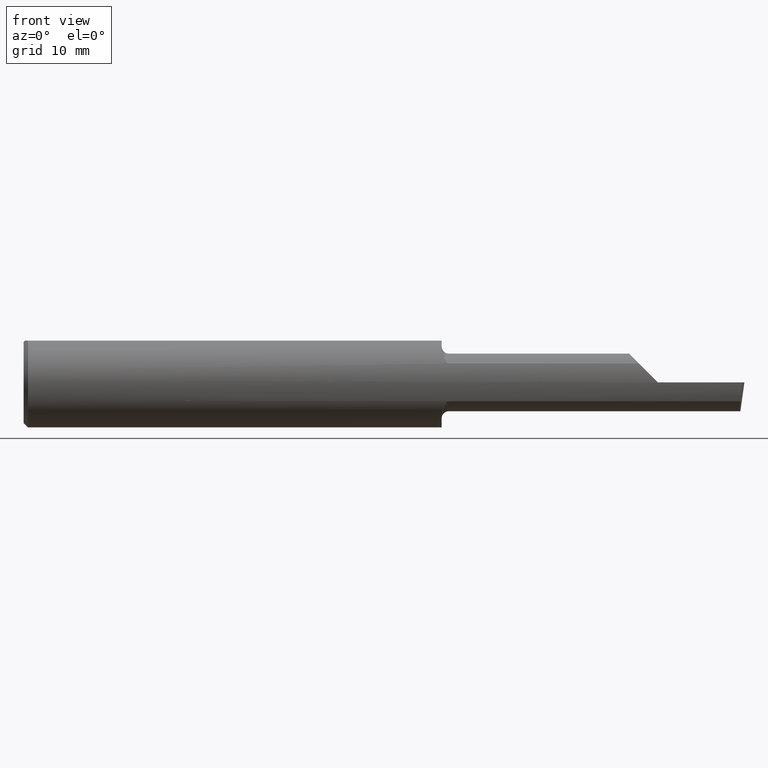
[diagram: clean part render]
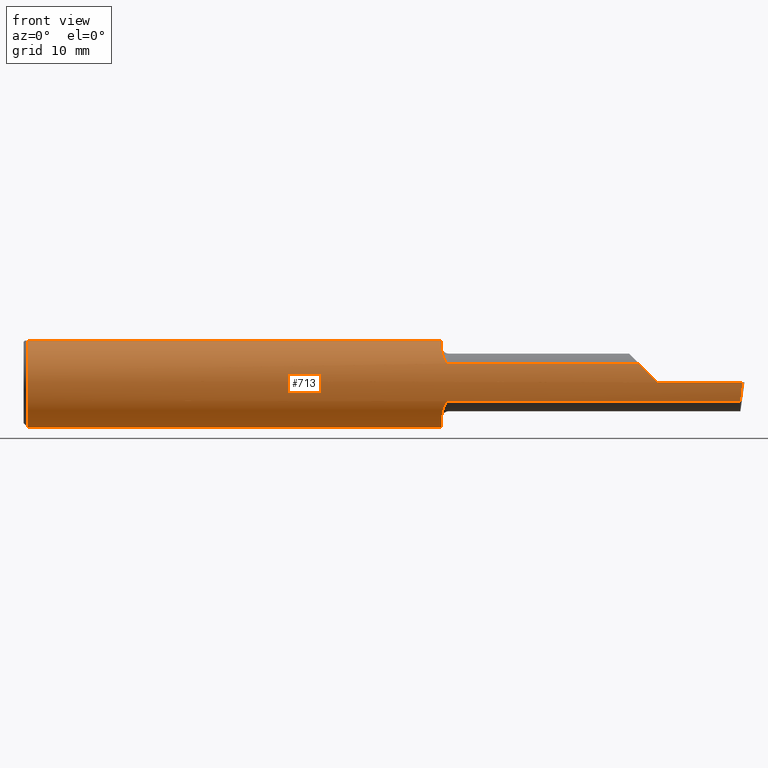
[diagram: same view with one face highlighted and labeled with its STEP entity id]
A machine part, front view. The second image highlights one B-rep face of the part: STEP entity #713.
In plain terms, the highlighted cylindrical surface (partial cylindrical patch) has radius 3.9649 mm, axis along (-1, -0, -0).
Its self-contained STEP definition (entity closure, byte-faithful):
#2 = CARTESIAN_POINT ( 'NONE',  ( 46.73599999999999710, -3.599887049924355154, -1.661794942640913098 ) ) ;
#4 = CARTESIAN_POINT ( 'NONE',  ( 37.46499999999999631, -3.599887049924355154, -1.661794942640913098 ) ) ;
#22 = ORIENTED_EDGE ( 'NONE', *, *, #257, .T. ) ;
#26 = CARTESIAN_POINT ( 'NONE',  ( 36.82999999999999829, -2.519138184568832983, -3.061811883615197072 ) ) ;
#31 =( BOUNDED_CURVE ( )  B_SPLINE_CURVE ( 3, ( #85, #451, #1150, #1238 ),
 .UNSPECIFIED., .F., .T. ) 
 B_SPLINE_CURVE_WITH_KNOTS ( ( 4, 4 ),
 ( 4.713029595418891660, 5.144867427157565842 ),
 .UNSPECIFIED. ) 
 CURVE ( )  GEOMETRIC_REPRESENTATION_ITEM ( )  RATIONAL_B_SPLINE_CURVE ( ( 1.000000000000000000, 0.9845199556095911575, 0.9845199556095911575, 1.000000000000000000 ) ) 
 REPRESENTATION_ITEM ( '' )  );
#36 = LINE ( 'NONE', #219, #791 ) ;
#40 = CARTESIAN_POINT ( 'NONE',  ( 36.82999999999999829, -2.519138184568832983, 3.061811883615197072 ) ) ;
#43 = VECTOR ( 'NONE', #915, 1000.000000000000000 ) ;
#50 = DIRECTION ( 'NONE',  ( 0.000000000000000000, 0.000000000000000000, -1.000000000000000000 ) ) ;
#56 = VERTEX_POINT ( 'NONE', #761 ) ;
#61 = EDGE_CURVE ( 'NONE', #269, #368, #850, .T. ) ;
#74 = ORIENTED_EDGE ( 'NONE', *, *, #223, .T. ) ;
#85 = CARTESIAN_POINT ( 'NONE',  ( 55.88000000000000256, -3.964939186418879213, 0.002539999999978843903 ) ) ;
#89 = CARTESIAN_POINT ( 'NONE',  ( 36.99726499476740571, -3.286836667701075854, 2.223289014318798440 ) ) ;
#98 = VECTOR ( 'NONE', #975, 1000.000000000000000 ) ;
#110 = CARTESIAN_POINT ( 'NONE',  ( 37.46499999999999631, -3.599887049924355154, -1.661794942640913098 ) ) ;
#115 = CARTESIAN_POINT ( 'NONE',  ( 55.88000000000000256, 0.000000000000000000, 0.000000000000000000 ) ) ;
#129 = CARTESIAN_POINT ( 'NONE',  ( 37.31266131581566725, -3.573289969088939255, -1.718397189166197547 ) ) ;
#131 = DIRECTION ( 'NONE',  ( 0.000000000000000000, 0.000000000000000000, 1.000000000000000000 ) ) ;
#134 = CARTESIAN_POINT ( 'NONE',  ( 63.50000000000000000, -1.462034237629201039, 3.685539999999999150 ) ) ;
#135 = AXIS2_PLACEMENT_3D ( 'NONE', #115, #616, #794 ) ;
#141 = EDGE_CURVE ( 'NONE', #56, #551, #529, .T. ) ;
#148 = EDGE_CURVE ( 'NONE', #255, #1234, #412, .T. ) ;
#151 = DIRECTION ( 'NONE',  ( 0.000000000000000000, 0.000000000000000000, -1.000000000000000000 ) ) ;
#160 = CARTESIAN_POINT ( 'NONE',  ( 37.16013817098802008, -3.482913605042309069, 1.896197172601131964 ) ) ;
#172 = CARTESIAN_POINT ( 'NONE',  ( 36.84086488926296710, -2.769437744535204970, 2.842117441750147577 ) ) ;
#174 = VERTEX_POINT ( 'NONE', #40 ) ;
#175 = AXIS2_PLACEMENT_3D ( 'NONE', #1119, #642, #151 ) ;
#193 = CARTESIAN_POINT ( 'NONE',  ( 46.73599999999999710, -3.599887049924355154, 1.661794942640912653 ) ) ;
#202 = LINE ( 'NONE', #134, #43 ) ;
#208 = DIRECTION ( 'NONE',  ( 1.000000000000000000, -0.000000000000000000, -0.000000000000000000 ) ) ;
#219 = CARTESIAN_POINT ( 'NONE',  ( 63.50000000000000000, 1.462034237629201039, 3.685539999999999150 ) ) ;
#223 = EDGE_CURVE ( 'NONE', #368, #56, #1198, .T. ) ;
#226 = CARTESIAN_POINT ( 'NONE',  ( 36.83000000000000540, -2.776463605467542450, -2.850094665743279077 ) ) ;
#242 = CARTESIAN_POINT ( 'NONE',  ( 0.3809999999999924558, 0.000000000000000000, 0.000000000000000000 ) ) ;
#244 = ORIENTED_EDGE ( 'NONE', *, *, #371, .F. ) ;
#252 = DIRECTION ( 'NONE',  ( 0.000000000000000000, 0.000000000000000000, -1.000000000000000000 ) ) ;
#255 = VERTEX_POINT ( 'NONE', #1008 ) ;
#257 = EDGE_CURVE ( 'NONE', #888, #1186, #589, .T. ) ;
#265 = EDGE_CURVE ( 'NONE', #613, #1083, #202, .T. ) ;
#269 = VERTEX_POINT ( 'NONE', #403 ) ;
#293 = AXIS2_PLACEMENT_3D ( 'NONE', #1178, #208, #799 ) ;
#307 = DIRECTION ( 'NONE',  ( -1.000000000000000000, -0.000000000000000000, -0.000000000000000000 ) ) ;
#314 = CARTESIAN_POINT ( 'NONE',  ( 37.05048060739425608, -3.373116484278351646, -2.089258773282957726 ) ) ;
#315 = AXIS2_PLACEMENT_3D ( 'NONE', #721, #896, #131 ) ;
#322 = CARTESIAN_POINT ( 'NONE',  ( 63.50000000000000000, -3.964939999999998577, -8.673617379884035472E-16 ) ) ;
#326 = FACE_OUTER_BOUND ( 'NONE', #818, .T. ) ;
#332 = EDGE_CURVE ( 'NONE', #255, #861, #830, .T. ) ;
#368 = VERTEX_POINT ( 'NONE', #844 ) ;
#371 = EDGE_CURVE ( 'NONE', #613, #174, #1213, .T. ) ;
#398 = CARTESIAN_POINT ( 'NONE',  ( 55.88000000000000256, -3.964939186418879213, 0.002539999999978843903 ) ) ;
#403 = CARTESIAN_POINT ( 'NONE',  ( 63.16765444560877540, -3.599887049924355598, -1.661794942640913542 ) ) ;
#412 = B_SPLINE_CURVE_WITH_KNOTS ( 'NONE', 3,
 ( #26, #226, #1002, #807, #314, #1204, #907, #996, #129, #981, #525, #110 ),
 .UNSPECIFIED., .F., .F.,
 ( 4, 2, 2, 2, 2, 4 ),
 ( 0.000000000000000000, 0.0009854161110805809577, 0.001478124166620873496, 0.001724478194391019766, 0.001847655208276093117, 0.001970832222161166252 ),
 .UNSPECIFIED. ) ;
#419 = DIRECTION ( 'NONE',  ( 1.000000000000000000, 0.000000000000000000, 0.000000000000000000 ) ) ;
#451 = CARTESIAN_POINT ( 'NONE',  ( 55.30478309583587304, -3.964570693771735765, 0.5777569041641154035 ) ) ;
#462 = CARTESIAN_POINT ( 'NONE',  ( 36.91278457167212679, -3.097160976341655214, 2.480706191382078263 ) ) ;
#467 = CIRCLE ( 'NONE', #552, 3.964939999999999465 ) ;
#476 = VERTEX_POINT ( 'NONE', #539 ) ;
#485 = AXIS2_PLACEMENT_3D ( 'NONE', #839, #637, #252 ) ;
#494 = CARTESIAN_POINT ( 'NONE',  ( 63.34737096957299229, -3.964939999999998577, -1.734723475976807094E-15 ) ) ;
#515 = EDGE_CURVE ( 'NONE', #476, #1196, #797, .T. ) ;
#525 = CARTESIAN_POINT ( 'NONE',  ( 37.42273214518530722, -3.599887049924846316, -1.661794942640280492 ) ) ;
#529 = CIRCLE ( 'NONE', #135, 3.964939999999999465 ) ;
#539 = CARTESIAN_POINT ( 'NONE',  ( 37.46499999999999631, -3.599887049924355154, 1.661794942640912653 ) ) ;
#551 = VERTEX_POINT ( 'NONE', #398 ) ;
#552 = AXIS2_PLACEMENT_3D ( 'NONE', #242, #1121, #50 ) ;
#559 = CARTESIAN_POINT ( 'NONE',  ( 36.88234523350259764, -2.993776095290413330, 2.604749827684865071 ) ) ;
#564 = ORIENTED_EDGE ( 'NONE', *, *, #265, .T. ) ;
#567 = CARTESIAN_POINT ( 'NONE',  ( 37.42244100483410563, -3.599887049924355598, 1.661794942640912875 ) ) ;
#575 = CARTESIAN_POINT ( 'NONE',  ( 37.05039366075621388, -3.372877125526301256, 2.089606631779968193 ) ) ;
#580 = ORIENTED_EDGE ( 'NONE', *, *, #957, .T. ) ;
#589 = CIRCLE ( 'NONE', #293, 3.964939999999999465 ) ;
#608 = VECTOR ( 'NONE', #701, 1000.000000000000000 ) ;
#613 = VERTEX_POINT ( 'NONE', #878 ) ;
#616 = DIRECTION ( 'NONE',  ( -1.000000000000000000, -0.000000000000000000, -0.000000000000000000 ) ) ;
#629 = ORIENTED_EDGE ( 'NONE', *, *, #332, .F. ) ;
#630 = EDGE_CURVE ( 'NONE', #269, #1234, #1072, .T. ) ;
#637 = DIRECTION ( 'NONE',  ( 1.000000000000000000, 0.000000000000000000, 0.000000000000000000 ) ) ;
#642 = DIRECTION ( 'NONE',  ( 1.000000000000000000, 0.000000000000000000, 0.000000000000000000 ) ) ;
#669 = CARTESIAN_POINT ( 'NONE',  ( 63.22088425362750996, -3.841336638864744746, -1.138751319066783063 ) ) ;
#686 = CARTESIAN_POINT ( 'NONE',  ( 63.28173451222403401, -3.964939999999998577, -0.5760837926561074296 ) ) ;
#701 = DIRECTION ( 'NONE',  ( -1.000000000000000000, -0.000000000000000000, -0.000000000000000000 ) ) ;
#704 = CARTESIAN_POINT ( 'NONE',  ( 0.3809999999999924558, 0.000000000000000000, -3.964939999999999465 ) ) ;
#707 = VECTOR ( 'NONE', #307, 1000.000000000000000 ) ;
#713 = ADVANCED_FACE ( 'NONE', ( #326 ), #1089, .T. ) ;
#721 = CARTESIAN_POINT ( 'NONE',  ( 63.50000000000000000, 0.000000000000000000, 0.000000000000000000 ) ) ;
#725 = EDGE_CURVE ( 'NONE', #1186, #861, #36, .T. ) ;
#741 = CARTESIAN_POINT ( 'NONE',  ( 37.31257322604091087, -3.573254725572614809, 1.718470549442532302 ) ) ;
#755 = CARTESIAN_POINT ( 'NONE',  ( 54.22074505735906769, -3.599887049924353821, 1.661794942640917094 ) ) ;
#756 = ORIENTED_EDGE ( 'NONE', *, *, #1223, .T. ) ;
#761 = CARTESIAN_POINT ( 'NONE',  ( 55.88000000000000256, -3.964939999999999465, -8.673617379884035472E-16 ) ) ;
#787 = CARTESIAN_POINT ( 'NONE',  ( 36.82999999999999829, 1.462034237629201039, 3.685539999999999150 ) ) ;
#791 = VECTOR ( 'NONE', #419, 1000.000000000000000 ) ;
#794 = DIRECTION ( 'NONE',  ( 0.000000000000000000, 0.000000000000000000, 1.000000000000000000 ) ) ;
#797 = LINE ( 'NONE', #193, #98 ) ;
#799 = DIRECTION ( 'NONE',  ( 0.000000000000000000, 0.000000000000000000, -1.000000000000000000 ) ) ;
#807 = CARTESIAN_POINT ( 'NONE',  ( 36.99735470549299521, -3.287133544512903516, -2.222929241776083753 ) ) ;
#818 = EDGE_LOOP ( 'NONE', ( #1141, #1010, #74, #1004, #841, #1220, #756, #244, #564, #580, #22, #869, #629, #960 ) ) ;
#830 = CIRCLE ( 'NONE', #175, 3.964939999999999465 ) ;
#833 = CARTESIAN_POINT ( 'NONE',  ( 0.3809999999999924558, -1.462034237629201039, 3.685539999999999150 ) ) ;
#839 = CARTESIAN_POINT ( 'NONE',  ( 36.82999999999999829, 0.000000000000000000, 0.000000000000000000 ) ) ;
#841 = ORIENTED_EDGE ( 'NONE', *, *, #1128, .T. ) ;
#844 = CARTESIAN_POINT ( 'NONE',  ( 63.34737096957299229, -3.964939999999998577, -1.734723475976807094E-15 ) ) ;
#850 =( BOUNDED_CURVE ( )  B_SPLINE_CURVE ( 3, ( #864, #669, #686, #494 ),
 .UNSPECIFIED., .F., .F. ) 
 B_SPLINE_CURVE_WITH_KNOTS ( ( 4, 4 ),
 ( 0.9109982351287744251, 1.343476681901648373 ),
 .UNSPECIFIED. ) 
 CURVE ( )  GEOMETRIC_REPRESENTATION_ITEM ( )  RATIONAL_B_SPLINE_CURVE ( ( 1.000000000000000000, 0.9844741726620818145, 0.9844741726620818145, 1.000000000000000000 ) ) 
 REPRESENTATION_ITEM ( '' )  );
#851 = CARTESIAN_POINT ( 'NONE',  ( 36.83000000000000540, -2.647704699856521238, 2.956032420268234873 ) ) ;
#859 = CARTESIAN_POINT ( 'NONE',  ( 36.82999999999999829, -2.519138184568832983, 3.061811883615197072 ) ) ;
#861 = VERTEX_POINT ( 'NONE', #787 ) ;
#863 = CARTESIAN_POINT ( 'NONE',  ( 37.28245480245961119, -3.560155007699746132, 1.745585502201546735 ) ) ;
#864 = CARTESIAN_POINT ( 'NONE',  ( 63.16765444560877540, -3.599887049924355598, -1.661794942640913542 ) ) ;
#869 = ORIENTED_EDGE ( 'NONE', *, *, #725, .T. ) ;
#878 = CARTESIAN_POINT ( 'NONE',  ( 36.82999999999999829, -1.462034237629201483, 3.685539999999999150 ) ) ;
#888 = VERTEX_POINT ( 'NONE', #704 ) ;
#896 = DIRECTION ( 'NONE',  ( -1.000000000000000000, -0.000000000000000000, -0.000000000000000000 ) ) ;
#907 = CARTESIAN_POINT ( 'NONE',  ( 37.20270401922562087, -3.517563494622021114, -1.830738248287720138 ) ) ;
#915 = DIRECTION ( 'NONE',  ( -1.000000000000000000, -0.000000000000000000, -0.000000000000000000 ) ) ;
#948 = CARTESIAN_POINT ( 'NONE',  ( 37.38209333977406601, -3.593173028997538321, 1.676424154804801558 ) ) ;
#957 = EDGE_CURVE ( 'NONE', #1083, #888, #467, .T. ) ;
#960 = ORIENTED_EDGE ( 'NONE', *, *, #148, .T. ) ;
#975 = DIRECTION ( 'NONE',  ( 1.000000000000000000, 0.000000000000000000, 0.000000000000000000 ) ) ;
#981 = CARTESIAN_POINT ( 'NONE',  ( 37.38223186210840510, -3.593202679785876708, -1.676360523546626569 ) ) ;
#996 = CARTESIAN_POINT ( 'NONE',  ( 37.28331072668533608, -3.560555847044618361, -1.744768704123047520 ) ) ;
#1002 = CARTESIAN_POINT ( 'NONE',  ( 36.86986463659906121, -3.000605534502818639, -2.611659286570838567 ) ) ;
#1004 = ORIENTED_EDGE ( 'NONE', *, *, #141, .T. ) ;
#1008 = CARTESIAN_POINT ( 'NONE',  ( 36.82999999999999829, -2.519138184568832983, -3.061811883615197072 ) ) ;
#1010 = ORIENTED_EDGE ( 'NONE', *, *, #61, .T. ) ;
#1050 = CARTESIAN_POINT ( 'NONE',  ( 0.3809999999999924558, 1.462034237629201039, 3.685539999999999150 ) ) ;
#1072 = LINE ( 'NONE', #2, #608 ) ;
#1083 = VERTEX_POINT ( 'NONE', #833 ) ;
#1089 = CYLINDRICAL_SURFACE ( 'NONE', #315, 3.964939999999999465 ) ;
#1119 = CARTESIAN_POINT ( 'NONE',  ( 36.82999999999999829, 0.000000000000000000, 0.000000000000000000 ) ) ;
#1121 = DIRECTION ( 'NONE',  ( 1.000000000000000000, -0.000000000000000000, -0.000000000000000000 ) ) ;
#1128 = EDGE_CURVE ( 'NONE', #551, #1196, #31, .T. ) ;
#1141 = ORIENTED_EDGE ( 'NONE', *, *, #630, .F. ) ;
#1150 = CARTESIAN_POINT ( 'NONE',  ( 54.74300171423059425, -3.840973355998292149, 1.139538285769383430 ) ) ;
#1178 = CARTESIAN_POINT ( 'NONE',  ( 0.3809999999999924558, 0.000000000000000000, 0.000000000000000000 ) ) ;
#1186 = VERTEX_POINT ( 'NONE', #1050 ) ;
#1196 = VERTEX_POINT ( 'NONE', #755 ) ;
#1198 = LINE ( 'NONE', #322, #707 ) ;
#1204 = CARTESIAN_POINT ( 'NONE',  ( 37.16080737346492668, -3.483507757590340592, -1.895116055831527202 ) ) ;
#1213 = CIRCLE ( 'NONE', #485, 3.964939999999999465 ) ;
#1220 = ORIENTED_EDGE ( 'NONE', *, *, #515, .F. ) ;
#1223 = EDGE_CURVE ( 'NONE', #476, #174, #1232, .T. ) ;
#1225 = CARTESIAN_POINT ( 'NONE',  ( 37.46499999999999631, -3.599887049924355154, 1.661794942640912653 ) ) ;
#1230 = CARTESIAN_POINT ( 'NONE',  ( 37.20226220547251472, -3.517214224323105043, 1.831405522215773685 ) ) ;
#1232 = B_SPLINE_CURVE_WITH_KNOTS ( 'NONE', 3,
 ( #1225, #567, #948, #741, #863, #1230, #160, #575, #89, #462, #559, #172, #851, #859 ),
 .UNSPECIFIED., .F., .F.,
 ( 4, 2, 2, 2, 2, 2, 4 ),
 ( 0.000000000000000000, 0.0001252016961403249059, 0.0002504033922806498118, 0.0005008067845612987562, 0.001001613569122605319, 0.001502420353683911773, 0.002003227138245218010 ),
 .UNSPECIFIED. ) ;
#1234 = VERTEX_POINT ( 'NONE', #4 ) ;
#1238 = CARTESIAN_POINT ( 'NONE',  ( 54.22074505735906769, -3.599887049924353821, 1.661794942640917094 ) ) ;